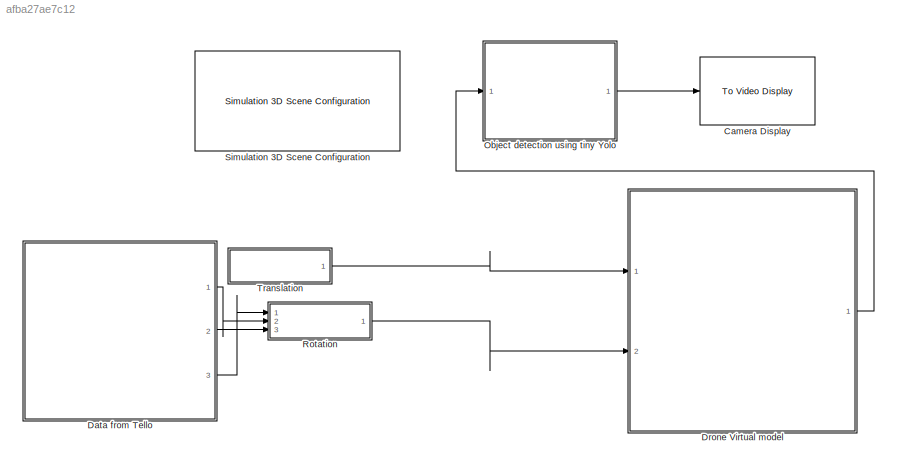
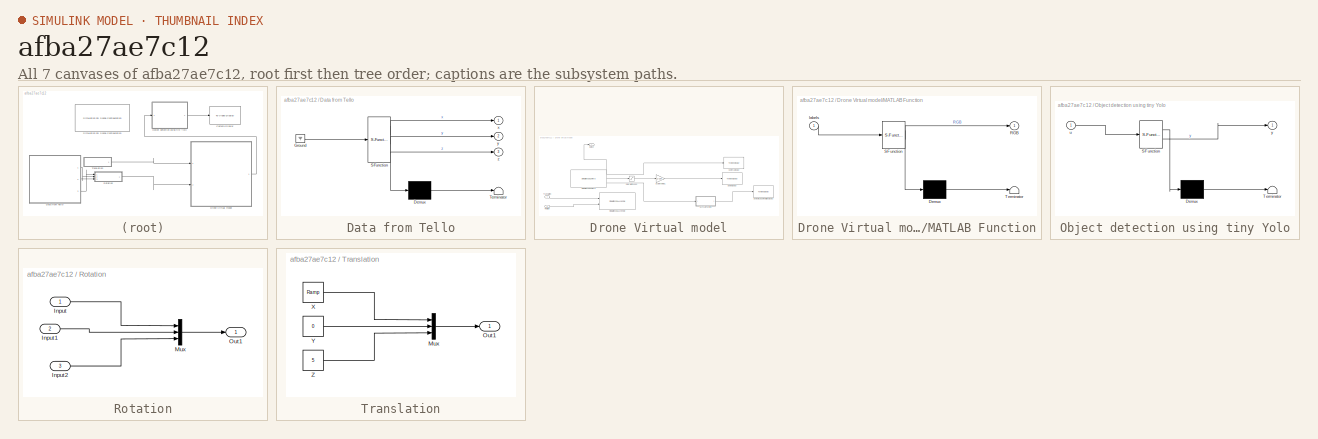
[diagram: thumbnail index - all 7 canvases of the model, root first then tree order]
MODEL slx_afba27ae7c12
KIND model
CONFIG AbsTol = auto
CONFIG EnableMultiTasking = off
CONFIG FixedStep = auto
CONFIG MaxStep = auto
CONFIG MinStep = auto
CONFIG RelTol = 1e-3
CONFIG SampleTimeConstraint = Unconstrained
CONFIG SolverName = VariableStepAuto
CONFIG StartTime = 0.0
CONFIG StopTime = 10.0
BLOCK [Reference] Camera Display  REF=visionsinks/To Video Display
  Ports = [1]
  SourceBlock = visionsinks/To Video Display
  SourceProductBaseCode = VP
  SourceType = To Video Display
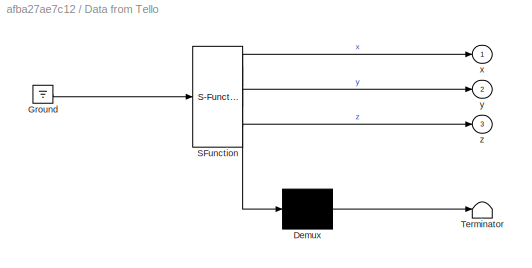
BLOCK [SubSystem] Data from Tello
  ErrorFcn = Stateflow.Translate.translate
  PermitHierarchicalResolution = ExplicitOnly
  Ports = [0, 3]
  RequestExecContextInheritance = off
  SFBlockType = MATLAB Function
  TreatAsAtomicUnit = on
BLOCK [Demux] Data from Tello/ Demux 
  Outputs = 1
  Ports = [1, 1]
BLOCK [Ground] Data from Tello/ Ground 
BLOCK [S-Function] Data from Tello/ SFunction 
  EnableBusSupport = on
  FunctionName = sf_sfun
  PortCounts = [1 4]
  Ports = [1, 4]
  SFcnIsStateOwnerBlock = off
  SFunctionDeploymentMode = off
  Tag = Stateflow S-Function 1
BLOCK [Terminator] Data from Tello/ Terminator 
BLOCK [Outport] Data from Tello/x
BLOCK [Outport] Data from Tello/y
  Port = 2
BLOCK [Outport] Data from Tello/z
  Port = 3
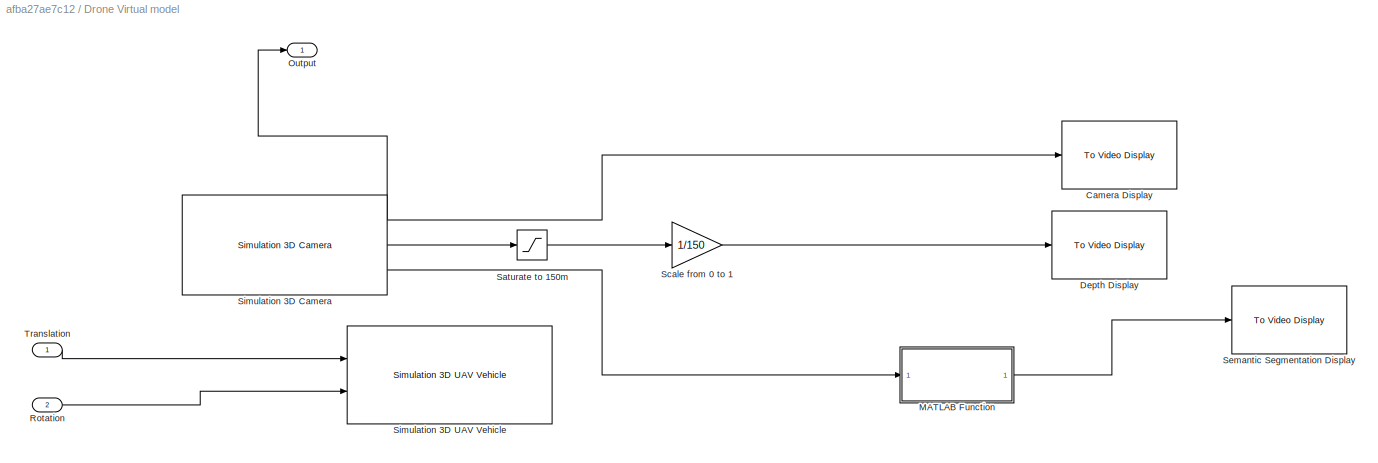
BLOCK [SubSystem] Drone Virtual model
  Ports = [2, 1]
  RequestExecContextInheritance = off
BLOCK [Reference] Drone Virtual model/Camera Display  REF=visionsinks/To Video Display
  Ports = [1]
  SourceBlock = visionsinks/To Video Display
  SourceProductBaseCode = VP
  SourceType = To Video Display
BLOCK [Reference] Drone Virtual model/Depth Display  REF=visionsinks/To Video Display
  Ports = [1]
  SourceBlock = visionsinks/To Video Display
  SourceProductBaseCode = VP
  SourceType = To Video Display
BLOCK [SubSystem] Drone Virtual model/MATLAB Function
  ErrorFcn = Stateflow.Translate.translate
  PermitHierarchicalResolution = ExplicitOnly
  Ports = [1, 1]
  RequestExecContextInheritance = off
  SFBlockType = MATLAB Function
  TreatAsAtomicUnit = on
BLOCK [Demux] Drone Virtual model/MATLAB Function/ Demux 
  Outputs = 1
  Ports = [1, 1]
BLOCK [S-Function] Drone Virtual model/MATLAB Function/ SFunction 
  EnableBusSupport = on
  FunctionName = sf_sfun
  PortCounts = [1 2]
  Ports = [1, 2]
  SFcnIsStateOwnerBlock = off
  SFunctionDeploymentMode = off
  Tag = Stateflow S-Function 2
BLOCK [Terminator] Drone Virtual model/MATLAB Function/ Terminator 
BLOCK [Outport] Drone Virtual model/MATLAB Function/RGB
BLOCK [Inport] Drone Virtual model/MATLAB Function/labels
BLOCK [Outport] Drone Virtual model/Output
BLOCK [Inport] Drone Virtual model/Rotation
  Port = 2
BLOCK [Saturate] Drone Virtual model/Saturate to 150m
  LowerLimit = 0
  UpperLimit = 150
BLOCK [Gain] Drone Virtual model/Scale from 0 to 1
  Gain = 1/150
BLOCK [Reference] Drone Virtual model/Semantic Segmentation Display  REF=visionsinks/To Video Display
  Ports = [1]
  SourceBlock = visionsinks/To Video Display
  SourceProductBaseCode = VP
  SourceType = To Video Display
BLOCK [Reference] Drone Virtual model/Simulation 3D Camera  REF=sim3dcameralib/Simulation 3D Camera
  Ports = [0, 3]
  Priority = 1
  SourceBlock = sim3dcameralib/Simulation 3D Camera
  SourceProductBaseCode = VE,AE,DR,UV,VE
  SourceType = Simulation 3D Camera
BLOCK [Reference] Drone Virtual model/Simulation 3D UAV Vehicle  REF=uavsim3dlib/Simulation 3D UAV Vehicle
  Ports = [2]
  Priority = -1
  SourceBlock = uavsim3dlib/Simulation 3D UAV Vehicle
  SourceProductBaseCode = UV
  SourceType = Simulation 3D UAV Vehicle
BLOCK [Inport] Drone Virtual model/Translation
BLOCK [SubSystem] Object detection using tiny Yolo
  ErrorFcn = Stateflow.Translate.translate
  PermitHierarchicalResolution = ExplicitOnly
  Ports = [1, 1]
  RequestExecContextInheritance = off
  SFBlockType = MATLAB Function
  TreatAsAtomicUnit = on
BLOCK [Demux] Object detection using tiny Yolo/ Demux 
  Outputs = 1
  Ports = [1, 1]
BLOCK [S-Function] Object detection using tiny Yolo/ SFunction 
  EnableBusSupport = on
  FunctionName = sf_sfun
  PortCounts = [1 2]
  Ports = [1, 2]
  SFcnIsStateOwnerBlock = off
  SFunctionDeploymentMode = off
  Tag = Stateflow S-Function 3
BLOCK [Terminator] Object detection using tiny Yolo/ Terminator 
BLOCK [Inport] Object detection using tiny Yolo/u
BLOCK [Outport] Object detection using tiny Yolo/y
BLOCK [SubSystem] Rotation
  Ports = [3, 1]
  RequestExecContextInheritance = off
BLOCK [Inport] Rotation/Input
BLOCK [Inport] Rotation/Input1
  Port = 2
BLOCK [Inport] Rotation/Input2
  Port = 3
BLOCK [Mux] Rotation/Mux
  DisplayOption = bar
  Inputs = 3
  Ports = [3, 1]
BLOCK [Outport] Rotation/Out1
BLOCK [Reference] Simulation 3D Scene Configuration  REF=sim3dlib/Simulation 3D Scene Configuration
  Ports = []
  Priority = 0
  SourceBlock = sim3dlib/Simulation 3D Scene Configuration
  SourceProductBaseCode = VE,AE,DR,UV,VE
  SourceType = Simulation 3D Scene Configuration
BLOCK [SubSystem] Translation
  Ports = [0, 1]
  RequestExecContextInheritance = off
BLOCK [Mux] Translation/Mux
  DisplayOption = bar
  Inputs = 3
  Ports = [3, 1]
BLOCK [Outport] Translation/Out1
BLOCK [Reference] Translation/X  REF=simulink/Sources/Ramp
  Ports = [0, 1]
  SourceBlock = simulink/Sources/Ramp
  SourceProductBaseCode = SL
  SourceType = Ramp
BLOCK [Constant] Translation/Y
  Value = 0
BLOCK [Constant] Translation/Z
  Value = 5
LINE Data from Tello:1 -> Rotation:2
LINE Data from Tello:2 -> Rotation:3
LINE Data from Tello:3 -> Rotation:1
LINE Drone Virtual model/MATLAB Function:1 -> Drone Virtual model/Semantic Segmentation Display:1
LINE Drone Virtual model/Rotation:1 -> Drone Virtual model/Simulation 3D UAV Vehicle:2
LINE Drone Virtual model/Saturate to 150m:1 -> Drone Virtual model/Scale from 0 to 1:1
LINE Drone Virtual model/Scale from 0 to 1:1 -> Drone Virtual model/Depth Display:1
NET Drone Virtual model/Simulation 3D Camera:1 -> Drone Virtual model/Camera Display:1, Drone Virtual model/Output:1
LINE Drone Virtual model/Simulation 3D Camera:2 -> Drone Virtual model/Saturate to 150m:1
LINE Drone Virtual model/Simulation 3D Camera:3 -> Drone Virtual model/MATLAB Function:1
LINE Drone Virtual model/Translation:1 -> Drone Virtual model/Simulation 3D UAV Vehicle:1
LINE Drone Virtual model:1 -> Object detection using tiny Yolo:1
LINE Object detection using tiny Yolo:1 -> Camera Display:1
LINE Rotation/Input1:1 -> Rotation/Mux:2
LINE Rotation/Input2:1 -> Rotation/Mux:3
LINE Rotation/Input:1 -> Rotation/Mux:1
LINE Rotation/Mux:1 -> Rotation/Out1:1
LINE Rotation:1 -> Drone Virtual model:2
LINE Translation/Mux:1 -> Translation/Out1:1
LINE Translation/X:1 -> Translation/Mux:1
LINE Translation/Y:1 -> Translation/Mux:2
LINE Translation/Z:1 -> Translation/Mux:3
LINE Translation:1 -> Drone Virtual model:1
note: NET lines group one-source signal fan-out (src -> all destinations, sorted); 1:1 wires keep LINE
CHART Data from Tello states=1 transitions=1
  STATE_LABEL 'eML_blk_kernel()'
  STATE_LABEL "SCRIPT:\nfunction [x,y,z]= fcn()\n% Create a |ryze| object.\n%\n% ryzeObj = ryze();\n% cameraObj = camera(ryzeObj);\n% %  \n% serverList = opcuaserverinfo('opc.tcp://LAPTOP-3JNI0QV6:53530/OPCUA/SimulationServer')\n% sampleServerInfo = findDescription(serverList, 'Simulation')\n% uaClient = opcua('localhost', 53530);\n% uaClient = opcua(sampleServerInfo)\n% status = uaClient.Status\n% \n% isConnected(uaClient)\n...<+3608ch>"
CHART Drone Virtual model/MATLAB Function states=1 transitions=1
  STATE_LABEL 'eML_blk_kernel()'
  STATE_LABEL "SCRIPT:\nfunction RGB = uavlabel2rgb(labels)\n% Convert semantic segmentation map captured during 3D simulation to RGB\n% color image.\n\n% Declare label2rgb function.\ncoder.extrinsic('label2rgb');\n\n% Preallocate memory for RGB matrix.\nRGB = coder.nullcopy(zeros(size(labels,1),size(labels,2),3,class(labels)));\n\n% Define colormap using 3D simulation label IDs.\ncmap = sim3dColormap;\n\n% Convert labels to ...<+47ch>"
CHART Object detection using tiny Yolo states=1 transitions=1
  STATE_LABEL 'eML_blk_kernel()'
  STATE_LABEL 'SCRIPT:\nfunction y = fcn(u)\n\ny = u;\n'
CHART  states=0 transitions=0
CHART  states=0 transitions=0
CHART  states=0 transitions=0
